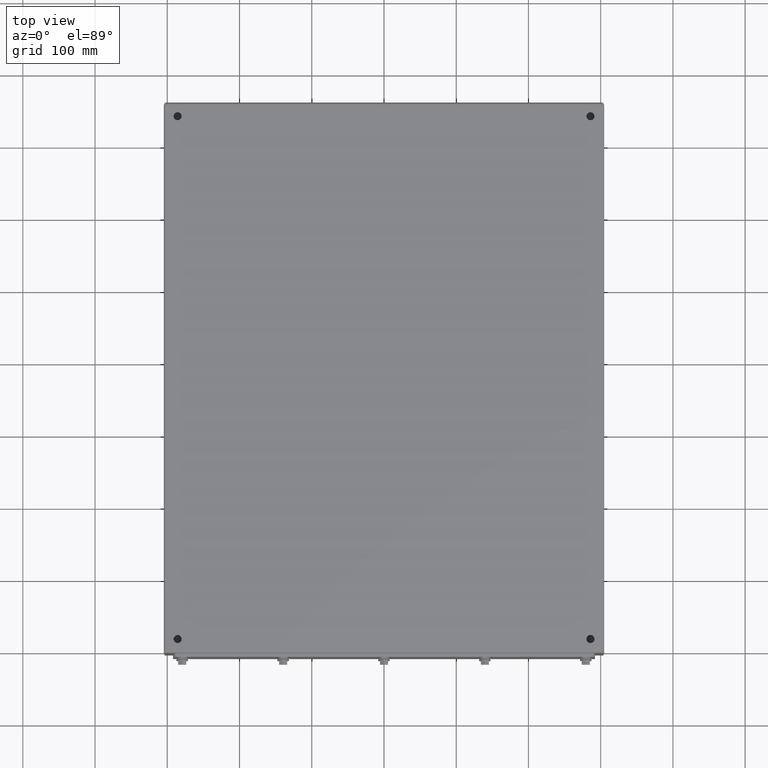
[diagram: clean part render]
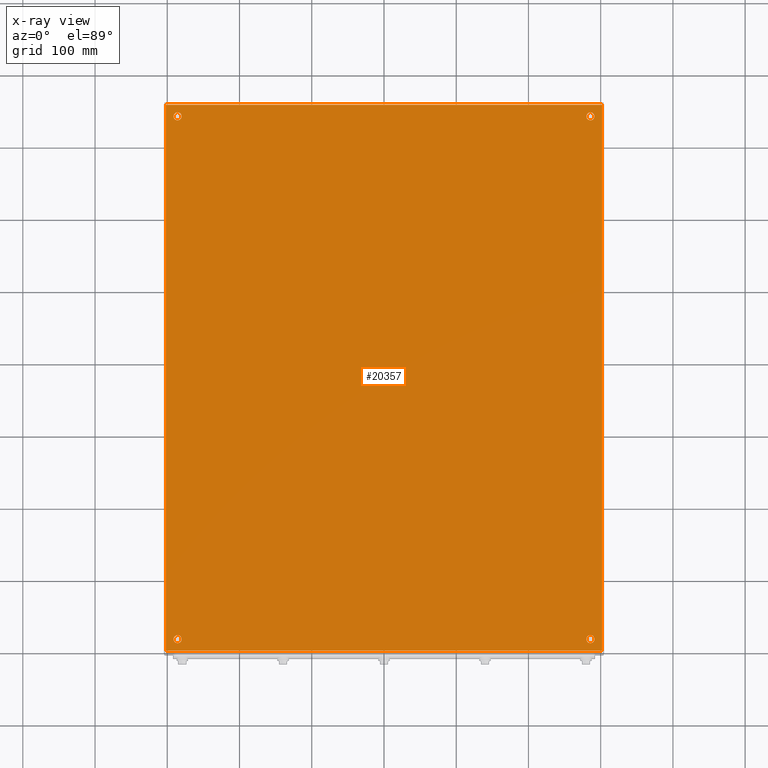
[diagram: x-ray — body ghosted, one internal face saturated and labeled with its STEP entity id]
A machine part, top view, then the same camera in x-ray: the body is ghosted and one INTERNAL B-rep face — a face not visible from any outside direction — is saturated and labeled: STEP entity #20357.
In plain terms, the highlighted planar face has unit normal (-0, -0, -1).
Its self-contained STEP definition (entity closure, byte-faithful):
#766=FACE_BOUND('',#3250,.T.);
#767=FACE_BOUND('',#3251,.T.);
#768=FACE_BOUND('',#3252,.T.);
#769=FACE_BOUND('',#3253,.T.);
#1453=PLANE('',#22077);
#2041=FACE_OUTER_BOUND('',#3249,.T.);
#3249=EDGE_LOOP('',(#14163,#14164,#14165,#14166));
#3250=EDGE_LOOP('',(#14167));
#3251=EDGE_LOOP('',(#14168));
#3252=EDGE_LOOP('',(#14169));
#3253=EDGE_LOOP('',(#14170));
#4677=LINE('',#31775,#6169);
#4683=LINE('',#31794,#6175);
#4689=LINE('',#31813,#6181);
#4694=LINE('',#31829,#6186);
#6169=VECTOR('',#24872,0.393700787401575);
#6175=VECTOR('',#24900,0.393700787401575);
#6181=VECTOR('',#24928,0.393700787401575);
#6186=VECTOR('',#24955,0.393700787401575);
#7336=CIRCLE('',#21903,0.21875);
#7338=CIRCLE('',#21906,0.21875);
#7340=CIRCLE('',#21909,0.21875);
#7342=CIRCLE('',#21912,0.21875);
#8412=VERTEX_POINT('',#30498);
#8414=VERTEX_POINT('',#30504);
#8416=VERTEX_POINT('',#30510);
#8418=VERTEX_POINT('',#30516);
#8581=VERTEX_POINT('',#31765);
#8582=VERTEX_POINT('',#31770);
#8584=VERTEX_POINT('',#31786);
#8586=VERTEX_POINT('',#31808);
#10360=EDGE_CURVE('',#8412,#8412,#7336,.T.);
#10363=EDGE_CURVE('',#8414,#8414,#7338,.T.);
#10366=EDGE_CURVE('',#8416,#8416,#7340,.T.);
#10369=EDGE_CURVE('',#8418,#8418,#7342,.T.);
#10656=EDGE_CURVE('',#8582,#8581,#4677,.T.);
#10666=EDGE_CURVE('',#8581,#8584,#4683,.T.);
#10676=EDGE_CURVE('',#8586,#8582,#4689,.T.);
#10685=EDGE_CURVE('',#8584,#8586,#4694,.T.);
#14163=ORIENTED_EDGE('',*,*,#10656,.T.);
#14164=ORIENTED_EDGE('',*,*,#10666,.T.);
#14165=ORIENTED_EDGE('',*,*,#10685,.T.);
#14166=ORIENTED_EDGE('',*,*,#10676,.T.);
#14167=ORIENTED_EDGE('',*,*,#10360,.T.);
#14168=ORIENTED_EDGE('',*,*,#10363,.T.);
#14169=ORIENTED_EDGE('',*,*,#10366,.T.);
#14170=ORIENTED_EDGE('',*,*,#10369,.T.);
#20357=ADVANCED_FACE('',(#2041,#766,#767,#768,#769),#1453,.T.);
#21903=AXIS2_PLACEMENT_3D('',#30500,#24361,#24362);
#21906=AXIS2_PLACEMENT_3D('',#30506,#24368,#24369);
#21909=AXIS2_PLACEMENT_3D('',#30512,#24375,#24376);
#21912=AXIS2_PLACEMENT_3D('',#30518,#24382,#24383);
#22077=AXIS2_PLACEMENT_3D('',#31830,#24956,#24957);
#24361=DIRECTION('center_axis',(0.,0.,-1.));
#24362=DIRECTION('ref_axis',(1.,0.,0.));
#24368=DIRECTION('center_axis',(0.,0.,-1.));
#24369=DIRECTION('ref_axis',(1.,0.,0.));
#24375=DIRECTION('center_axis',(0.,0.,-1.));
#24376=DIRECTION('ref_axis',(1.,0.,0.));
#24382=DIRECTION('center_axis',(0.,0.,-1.));
#24383=DIRECTION('ref_axis',(1.,0.,0.));
#24872=DIRECTION('',(1.,0.,0.));
#24900=DIRECTION('',(-1.8800919714783E-16,1.,0.));
#24928=DIRECTION('',(3.05514945365224E-16,-1.,0.));
#24955=DIRECTION('',(-1.,0.,0.));
#24956=DIRECTION('center_axis',(0.,0.,1.));
#24957=DIRECTION('ref_axis',(1.,0.,0.));
#30498=CARTESIAN_POINT('',(0.531249999999996,0.750000000000002,0.074));
#30500=CARTESIAN_POINT('Origin',(0.749999999999996,0.750000000000002,0.074));
#30504=CARTESIAN_POINT('',(23.03125,0.750000000000002,0.074));
#30506=CARTESIAN_POINT('Origin',(23.25,0.750000000000002,0.074));
#30510=CARTESIAN_POINT('',(0.531249999999997,29.25,0.074));
#30512=CARTESIAN_POINT('Origin',(0.749999999999997,29.25,0.074));
#30516=CARTESIAN_POINT('',(23.03125,29.25,0.074));
#30518=CARTESIAN_POINT('Origin',(23.25,29.25,0.074));
#31765=CARTESIAN_POINT('',(23.879125,0.120875000000001,0.074));
#31770=CARTESIAN_POINT('',(0.120875000000005,0.120875000000006,0.074));
#31775=CARTESIAN_POINT('',(17.9395625,0.120875000000001,0.074));
#31786=CARTESIAN_POINT('',(23.879125,29.879125,0.074));
#31794=CARTESIAN_POINT('',(23.879125,22.4395625,0.074));
#31808=CARTESIAN_POINT('',(0.120874999999994,29.879125,0.074));
#31813=CARTESIAN_POINT('',(0.120875000000003,7.5604375,0.074));
#31829=CARTESIAN_POINT('',(6.06043749999999,29.879125,0.074));
#31830=CARTESIAN_POINT('Origin',(12.,15.,0.074));